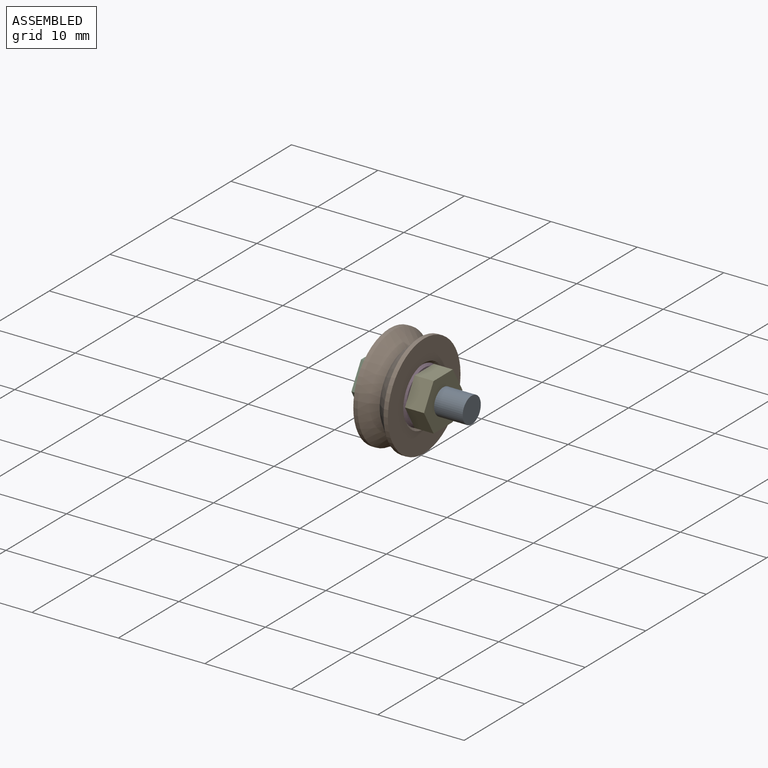
[diagram: assembled view]
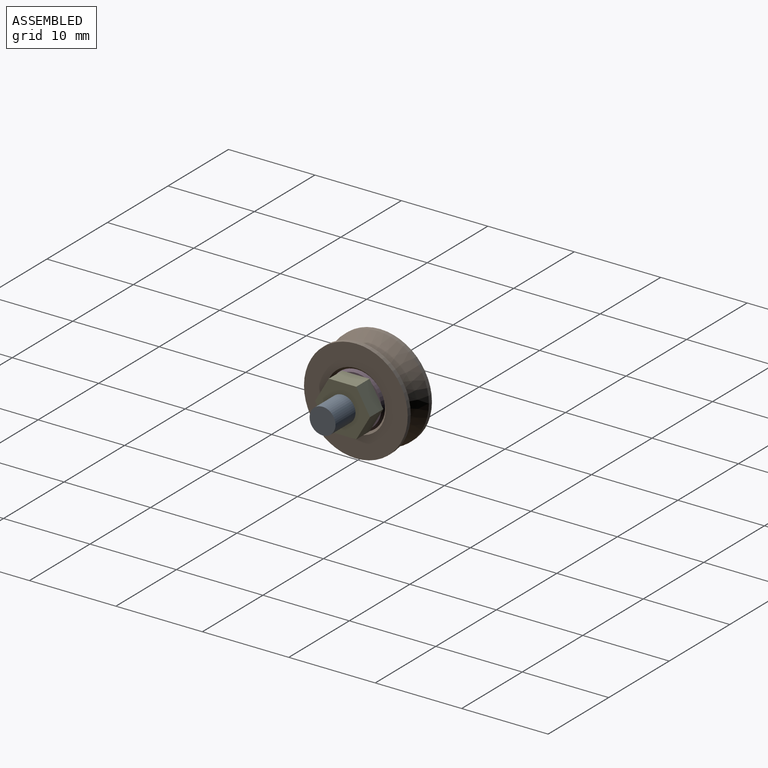
[diagram: assembled view, second angle]
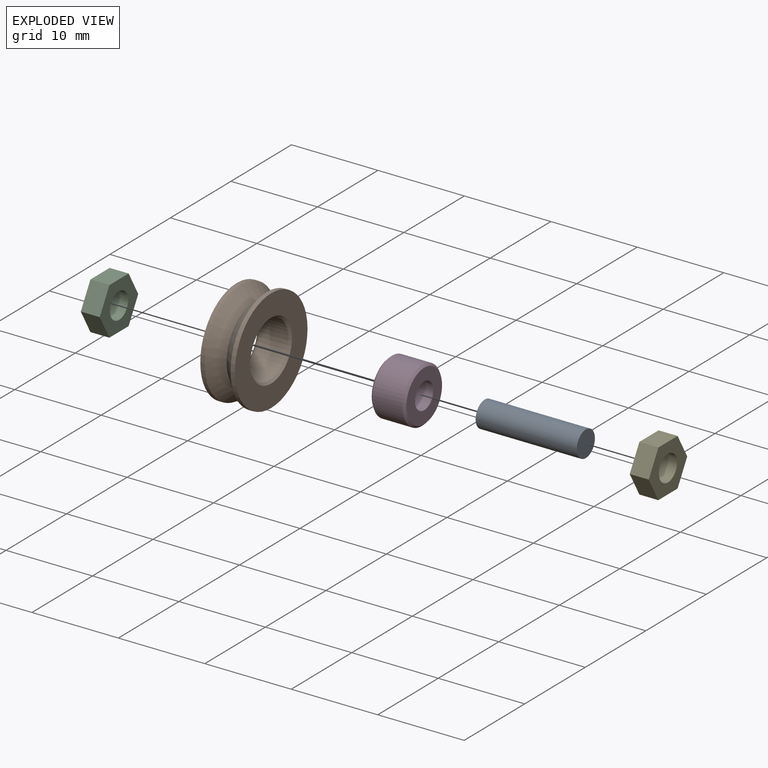
[diagram: exploded view]
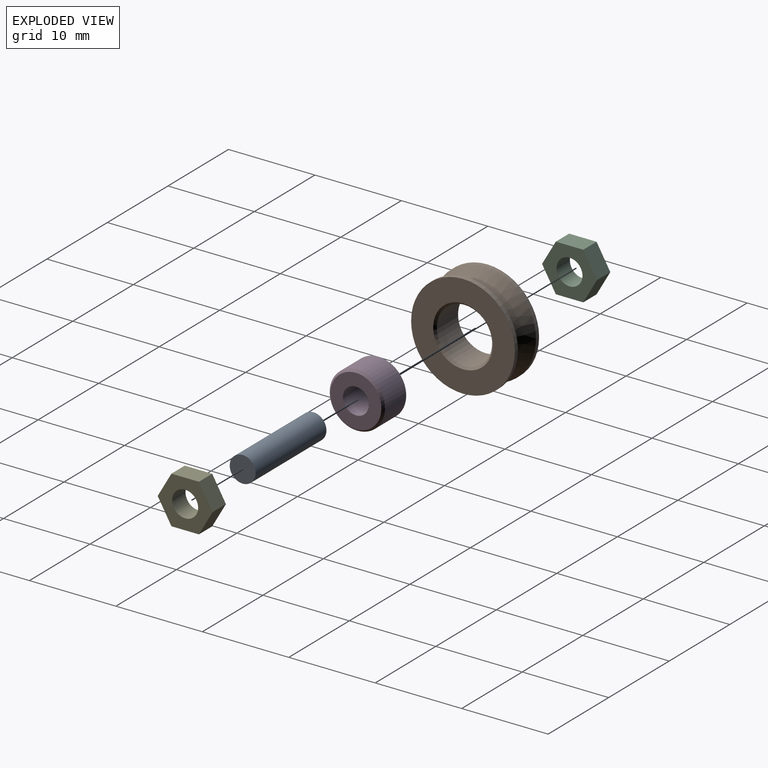
[diagram: exploded view, second angle]
ASSEMBLY  parts=5 mates=4
PART A: 3 faces, bbox 11.7x3x3 mm
  f0: cylinder r=1.5mm len=11.7mm, axis (-1,0,0), area 110.3mm2, adj f1,f2
  f1: plane 3x3mm, normal (-1,0,0), area 7.1mm2, adj f0
  f2: plane 3x3mm, normal (1,0,0), area 7.1mm2, adj f0
PART B: 9 faces, bbox 4x12x12 mm
  f0: plane 12x12mm, normal (-1,0,0), area 75.7mm2, adj f6,f8
  f1: cylinder r=3.2mm len=6.4mm, axis (-1,0,0), area 70.4mm2, adj f7,f8
  f2: plane 12x12mm, normal (1,0,0), area 75.7mm2, adj f3,f7
  f3: cylinder r=6mm len=12mm, axis (-1,0,0), area 18.8mm2, adj f2,f4
  f4: cone r=4.5mm half-angle=45deg, axis (1,0,0), area 70mm2, adj f3,f5
  f5: cone r=6mm half-angle=45deg, axis (-1,0,0), area 70mm2, adj f4,f6
  f6: cylinder r=6mm len=12mm, axis (-1,0,0), area 18.8mm2, adj f0,f5
  f7: cone r=3.45mm half-angle=45deg, axis (1,0,0), area 7.4mm2, adj f1,f2
  f8: cone r=3.2mm half-angle=45deg, axis (-1,0,0), area 7.4mm2, adj f0,f1
PART C: 9 faces, bbox 2.2x6.4x5.5 mm
  f0: plane 3.18x2.2mm, normal (0,0,1), area 7mm2, adj f1,f5,f7,f8
  f1: plane 2.75x2.2mm, normal (0,-0.87,0.5), area 7mm2, adj f0,f2,f7,f8
  f2: plane 2.75x2.2mm, normal (0,-0.87,-0.5), area 7mm2, adj f1,f3,f7,f8
  f3: plane 3.18x2.2mm, normal (0,0,-1), area 7mm2, adj f2,f4,f7,f8
  f4: plane 2.75x2.2mm, normal (0,0.87,-0.5), area 7mm2, adj f3,f5,f7,f8
  f5: plane 2.75x2.2mm, normal (0,0.87,0.5), area 7mm2, adj f0,f4,f7,f8
  f6: cylinder r=1.5mm len=3mm, axis (-1,0,0), area 20.7mm2, adj f7,f8
  f7: plane 6.35x5.5mm, normal (1,0,0), area 19.1mm2, adj f0,f1,f2,f3,f4,f5,f6
  f8: plane 6.35x5.5mm, normal (-1,0,0), area 19.1mm2, adj f0,f1,f2,f3,f4,f5,f6
PART D: 6 faces, bbox 4x6.4x6.4 mm
  f0: plane 5.9x5.9mm, normal (1,0,0), area 20.3mm2, adj f3,f4
  f1: cylinder r=3.2mm len=6.4mm, axis (-1,0,0), area 70.4mm2, adj f4,f5
  f2: plane 5.9x5.9mm, normal (-1,0,0), area 20.3mm2, adj f3,f5
  f3: cylinder r=1.5mm len=4mm, axis (-1,0,0), area 37.7mm2, adj f0,f2
  f4: cone r=3.2mm half-angle=45deg, axis (-1,0,0), area 6.8mm2, adj f0,f1
  f5: cone r=2.95mm half-angle=45deg, axis (1,0,0), area 6.8mm2, adj f1,f2
PART E: 9 faces, bbox 2.2x6.4x5.5 mm
  f0: plane 3.18x2.2mm, normal (0,0,1), area 7mm2, adj f1,f5,f7,f8
  f1: plane 2.75x2.2mm, normal (0,-0.87,0.5), area 7mm2, adj f0,f2,f7,f8
  f2: plane 2.75x2.2mm, normal (0,-0.87,-0.5), area 7mm2, adj f1,f3,f7,f8
  f3: plane 3.18x2.2mm, normal (0,0,-1), area 7mm2, adj f2,f4,f7,f8
  f4: plane 2.75x2.2mm, normal (0,0.87,-0.5), area 7mm2, adj f3,f5,f7,f8
  f5: plane 2.75x2.2mm, normal (0,0.87,0.5), area 7mm2, adj f0,f4,f7,f8
  f6: cylinder r=1.5mm len=3mm, axis (-1,0,0), area 20.7mm2, adj f7,f8
  f7: plane 6.35x5.5mm, normal (1,0,0), area 19.1mm2, adj f0,f1,f2,f3,f4,f5,f6
  f8: plane 6.35x5.5mm, normal (-1,0,0), area 19.1mm2, adj f0,f1,f2,f3,f4,f5,f6
PLACE A t=(-5.84,0.01,0)mm
PLACE B t=(-5.84,0.01,0)mm
PLACE C t=(-5.84,0.01,0)mm
PLACE D t=(-5.84,0.01,0)mm
PLACE E t=(-5.84,0.01,0)mm
MATE fastened C.f6 <-> A.f0  axis (-1,0,0) through (-5.84,0.01,0)mm
MATE fastened D.f1 <-> C.f6  axis (-1,0,0) through (-3.64,0.01,0)mm
MATE fastened B.f1 <-> D.f1  axis (-1,0,0) through (-1.64,0.01,0)mm
MATE fastened E.f6 <-> D.f1  axis (-1,0,0) through (0.36,0.01,0)mm
